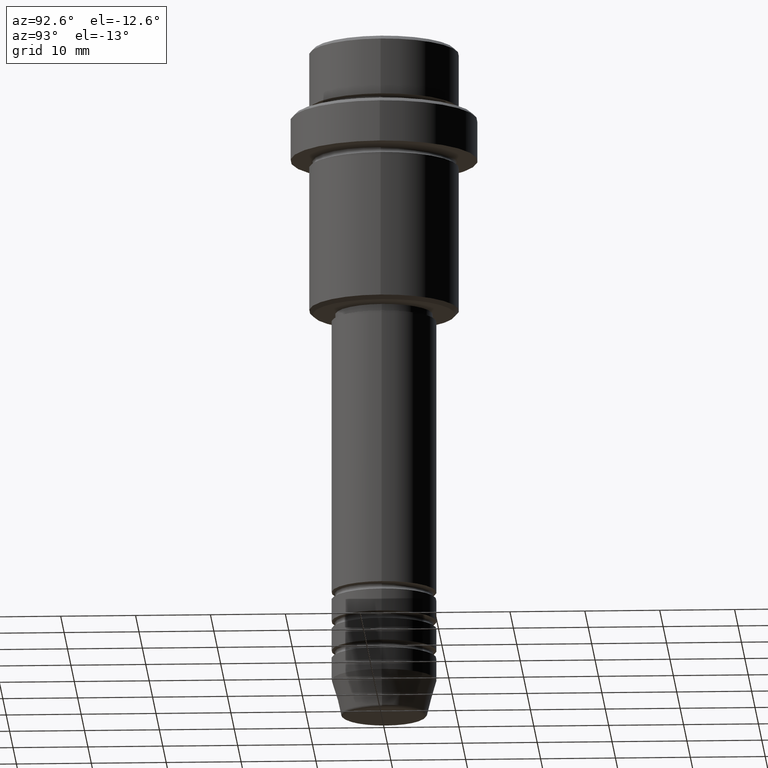
[diagram: clean part render]
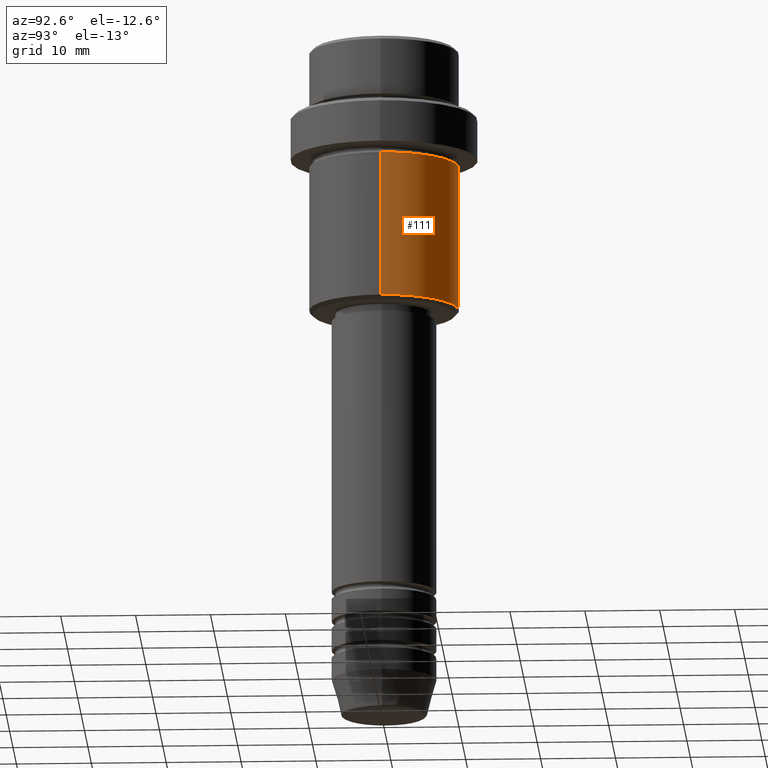
[diagram: same view with one face highlighted and labeled with its STEP entity id]
A machine part, auxiliary view. The second image highlights one B-rep face of the part: STEP entity #111.
In plain terms, the highlighted cylindrical surface (partial cylindrical patch) has radius 10 mm, axis along (-0, -0, 1).
Its self-contained STEP definition (entity closure, byte-faithful):
#66 = EDGE_LOOP ( 'NONE', ( #379, #735, #609, #1097 ) ) ;
#70 = AXIS2_PLACEMENT_3D ( 'NONE', #1323, #485, #388 ) ;
#111 = ADVANCED_FACE ( 'NONE', ( #1301 ), #1197, .T. ) ;
#130 = VERTEX_POINT ( 'NONE', #1109 ) ;
#141 = VERTEX_POINT ( 'NONE', #682 ) ;
#156 = VERTEX_POINT ( 'NONE', #572 ) ;
#174 = LINE ( 'NONE', #1348, #411 ) ;
#194 = DIRECTION ( 'NONE',  ( -0.000000000000000000, -0.000000000000000000, 1.000000000000000000 ) ) ;
#220 = CARTESIAN_POINT ( 'NONE',  ( 0.000000000000000000, 0.000000000000000000, 0.000000000000000000 ) ) ;
#229 = CARTESIAN_POINT ( 'NONE',  ( 10.00000000000000000, 0.000000000000000000, 0.000000000000000000 ) ) ;
#257 = CIRCLE ( 'NONE', #70, 10.00000000000000000 ) ;
#315 = VERTEX_POINT ( 'NONE', #747 ) ;
#379 = ORIENTED_EDGE ( 'NONE', *, *, #731, .T. ) ;
#388 = DIRECTION ( 'NONE',  ( 1.000000000000000000, 0.000000000000000000, 0.000000000000000000 ) ) ;
#411 = VECTOR ( 'NONE', #1137, 1000.000000000000000 ) ;
#485 = DIRECTION ( 'NONE',  ( -0.000000000000000000, -0.000000000000000000, 1.000000000000000000 ) ) ;
#523 = DIRECTION ( 'NONE',  ( -1.000000000000000000, 0.000000000000000000, 0.000000000000000000 ) ) ;
#531 = DIRECTION ( 'NONE',  ( -0.000000000000000000, -0.000000000000000000, 1.000000000000000000 ) ) ;
#557 = DIRECTION ( 'NONE',  ( 1.000000000000000000, 0.000000000000000000, 0.000000000000000000 ) ) ;
#572 = CARTESIAN_POINT ( 'NONE',  ( -10.00000000000000000, 1.224646799147353256E-15, -35.49999999999998579 ) ) ;
#609 = ORIENTED_EDGE ( 'NONE', *, *, #1009, .F. ) ;
#682 = CARTESIAN_POINT ( 'NONE',  ( 10.00000000000000000, 0.000000000000000000, -16.00000000000000000 ) ) ;
#731 = EDGE_CURVE ( 'NONE', #130, #156, #800, .T. ) ;
#735 = ORIENTED_EDGE ( 'NONE', *, *, #1030, .T. ) ;
#747 = CARTESIAN_POINT ( 'NONE',  ( -10.00000000000000000, 1.224646799147353256E-15, -16.00000000000000000 ) ) ;
#771 = LINE ( 'NONE', #229, #1319 ) ;
#800 = CIRCLE ( 'NONE', #891, 10.00000000000000000 ) ;
#891 = AXIS2_PLACEMENT_3D ( 'NONE', #1158, #194, #523 ) ;
#1009 = EDGE_CURVE ( 'NONE', #141, #315, #257, .T. ) ;
#1030 = EDGE_CURVE ( 'NONE', #156, #315, #174, .T. ) ;
#1084 = AXIS2_PLACEMENT_3D ( 'NONE', #220, #1103, #557 ) ;
#1097 = ORIENTED_EDGE ( 'NONE', *, *, #1211, .F. ) ;
#1103 = DIRECTION ( 'NONE',  ( -0.000000000000000000, -0.000000000000000000, 1.000000000000000000 ) ) ;
#1109 = CARTESIAN_POINT ( 'NONE',  ( 10.00000000000000000, 0.000000000000000000, -35.49999999999998579 ) ) ;
#1137 = DIRECTION ( 'NONE',  ( -0.000000000000000000, -0.000000000000000000, 1.000000000000000000 ) ) ;
#1158 = CARTESIAN_POINT ( 'NONE',  ( 0.000000000000000000, 0.000000000000000000, -35.49999999999998579 ) ) ;
#1197 = CYLINDRICAL_SURFACE ( 'NONE', #1084, 10.00000000000000000 ) ;
#1211 = EDGE_CURVE ( 'NONE', #130, #141, #771, .T. ) ;
#1301 = FACE_OUTER_BOUND ( 'NONE', #66, .T. ) ;
#1319 = VECTOR ( 'NONE', #531, 1000.000000000000000 ) ;
#1323 = CARTESIAN_POINT ( 'NONE',  ( 0.000000000000000000, 0.000000000000000000, -16.00000000000000000 ) ) ;
#1348 = CARTESIAN_POINT ( 'NONE',  ( -10.00000000000000000, 1.224646799147353256E-15, 0.000000000000000000 ) ) ;